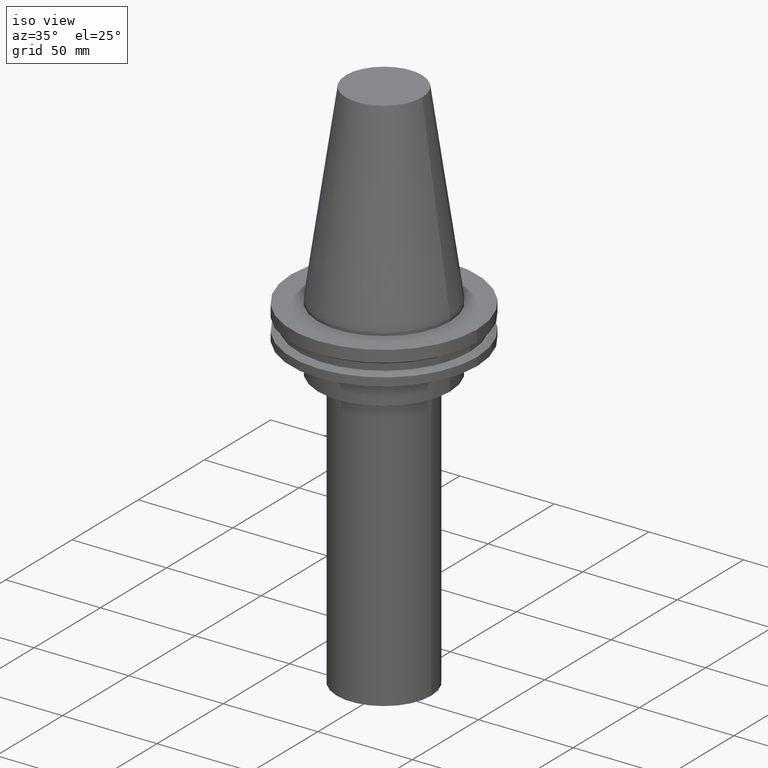
[diagram: clean part render]
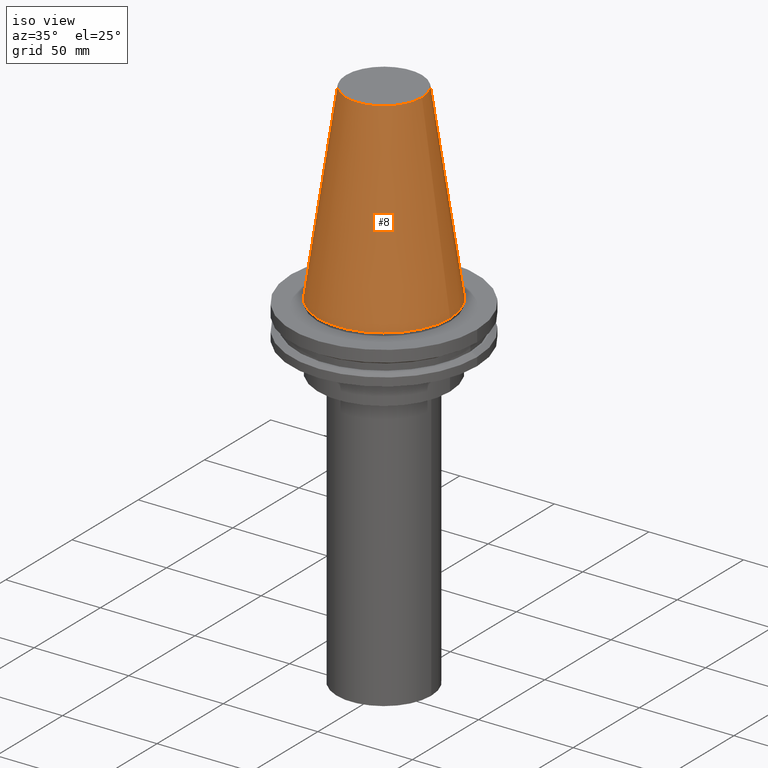
[diagram: same view with one face highlighted and labeled with its STEP entity id]
A machine part, iso view. The second image highlights one B-rep face of the part: STEP entity #8.
In plain terms, the highlighted conical surface has half-angle 8.297 deg.
Its self-contained STEP definition (entity closure, byte-faithful):
#8 = ADVANCED_FACE ( 'NONE', ( #258, #80 ), #289, .T. ) ;
#15 = ORIENTED_EDGE ( 'NONE', *, *, #149, .T. ) ;
#39 = CARTESIAN_POINT ( 'NONE',  ( 20.10819343178871321, 0.000000000000000000, 101.5999999999999801 ) ) ;
#44 = DIRECTION ( 'NONE',  ( -1.000000000000000000, 0.000000000000000000, 0.000000000000000000 ) ) ;
#60 = DIRECTION ( 'NONE',  ( 1.000000000000000000, 0.000000000000000000, 0.000000000000000000 ) ) ;
#66 = AXIS2_PLACEMENT_3D ( 'NONE', #338, #333, #60 ) ;
#80 = FACE_OUTER_BOUND ( 'NONE', #383, .T. ) ;
#87 = AXIS2_PLACEMENT_3D ( 'NONE', #362, #305, #391 ) ;
#131 = CIRCLE ( 'NONE', #87, 34.92499999999999005 ) ;
#143 = VERTEX_POINT ( 'NONE', #39 ) ;
#146 = ORIENTED_EDGE ( 'NONE', *, *, #218, .F. ) ;
#149 = EDGE_CURVE ( 'NONE', #321, #321, #131, .T. ) ;
#174 = DIRECTION ( 'NONE',  ( 0.000000000000000000, 0.000000000000000000, -1.000000000000000000 ) ) ;
#202 = CARTESIAN_POINT ( 'NONE',  ( 0.000000000000000000, 0.000000000000000000, 0.000000000000000000 ) ) ;
#214 = AXIS2_PLACEMENT_3D ( 'NONE', #202, #174, #44 ) ;
#218 = EDGE_CURVE ( 'NONE', #143, #143, #243, .T. ) ;
#243 = CIRCLE ( 'NONE', #66, 20.10819343178871321 ) ;
#258 = FACE_BOUND ( 'NONE', #312, .T. ) ;
#289 = CONICAL_SURFACE ( 'NONE', #214, 34.92499999999999005, 0.1448138465474119452 ) ;
#305 = DIRECTION ( 'NONE',  ( -0.000000000000000000, -0.000000000000000000, 1.000000000000000000 ) ) ;
#312 = EDGE_LOOP ( 'NONE', ( #146 ) ) ;
#321 = VERTEX_POINT ( 'NONE', #325 ) ;
#325 = CARTESIAN_POINT ( 'NONE',  ( 34.92499999999999005, 0.000000000000000000, 0.000000000000000000 ) ) ;
#333 = DIRECTION ( 'NONE',  ( -0.000000000000000000, -0.000000000000000000, 1.000000000000000000 ) ) ;
#338 = CARTESIAN_POINT ( 'NONE',  ( 0.000000000000000000, 0.000000000000000000, 101.5999999999999801 ) ) ;
#362 = CARTESIAN_POINT ( 'NONE',  ( 0.000000000000000000, 0.000000000000000000, 0.000000000000000000 ) ) ;
#383 = EDGE_LOOP ( 'NONE', ( #15 ) ) ;
#391 = DIRECTION ( 'NONE',  ( 1.000000000000000000, 0.000000000000000000, 0.000000000000000000 ) ) ;